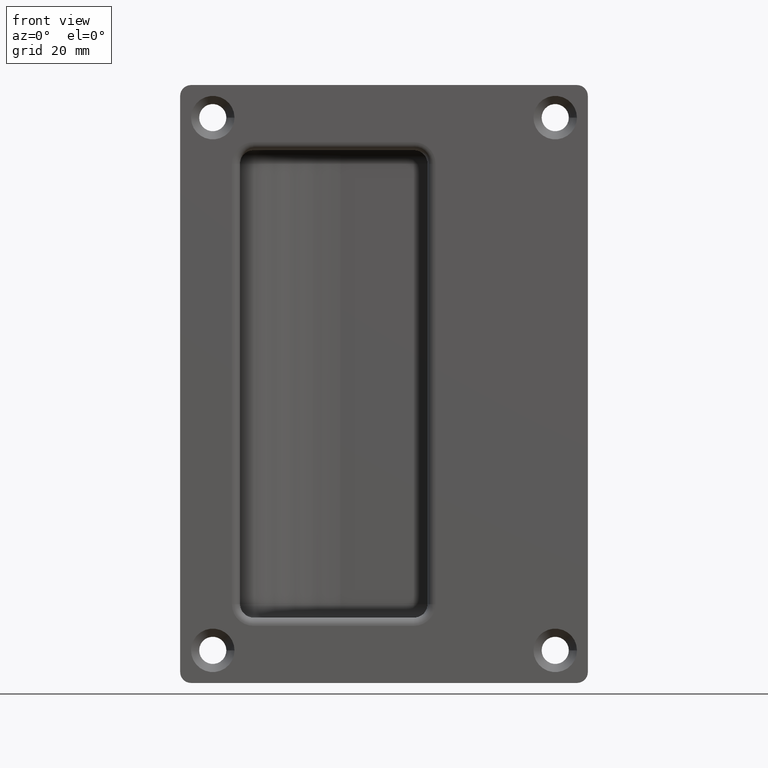
[diagram: clean part render]
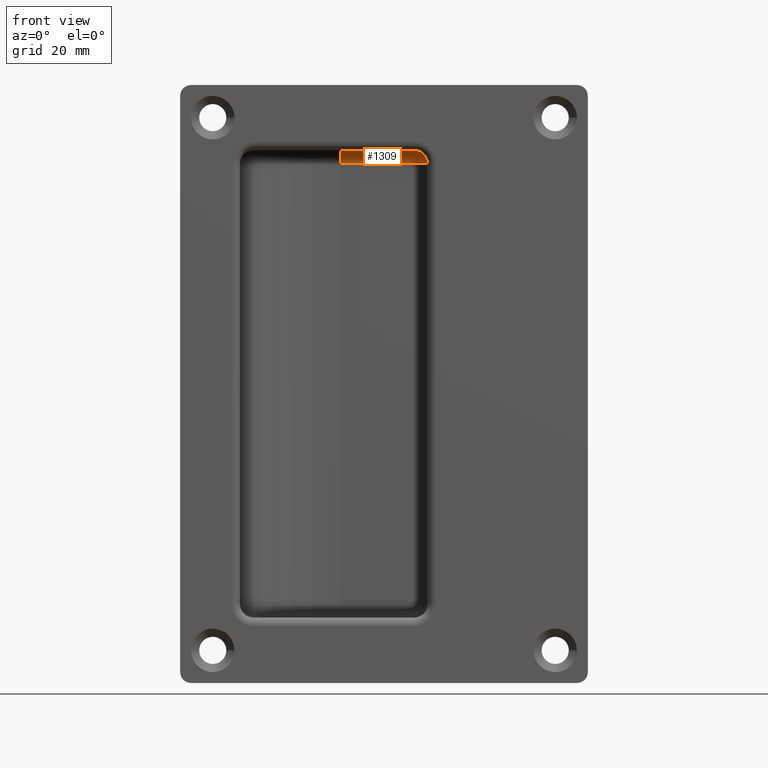
[diagram: same view with one face highlighted and labeled with its STEP entity id]
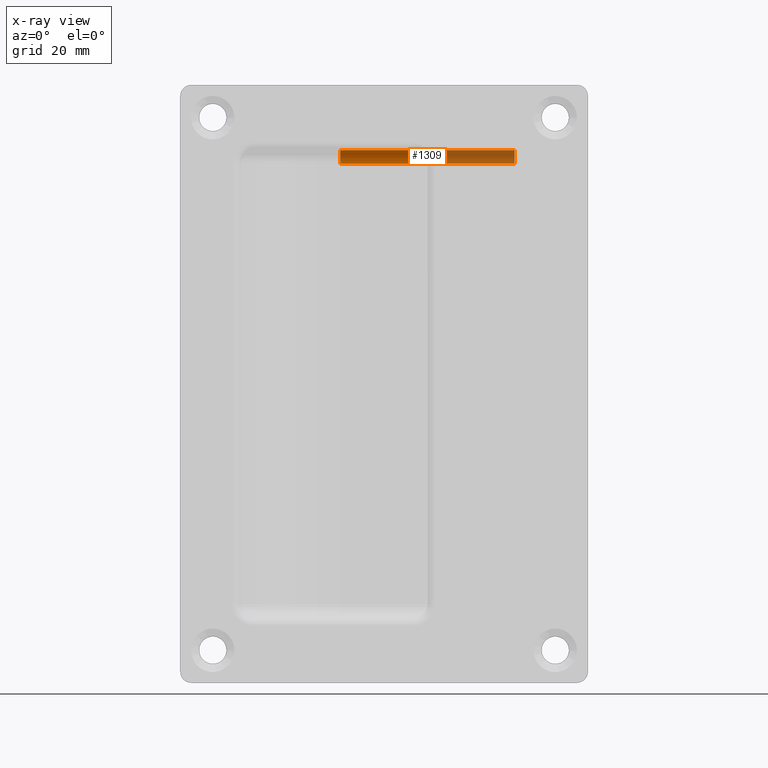
[diagram: x-ray of the same camera — body ghosted, the highlighted face saturated]
A machine part, front view. The second image highlights one B-rep face of the part: STEP entity #1309.
The next image is the same camera in x-ray: the body ghosted, the highlighted face saturated — about 52% of this face is hidden behind the body in this view.
In plain terms, the highlighted cylindrical surface (edge-blend (fillet) strip) has radius 2.5 mm, axis along (-1, -0, 0).
Its self-contained STEP definition (entity closure, byte-faithful):
#92=LINE('',#2117,#188);
#95=LINE('',#2134,#191);
#188=VECTOR('',#1659,32.);
#191=VECTOR('',#1680,32.);
#270=CYLINDRICAL_SURFACE('',#1424,2.5);
#313=FACE_OUTER_BOUND('',#398,.T.);
#398=EDGE_LOOP('',(#970,#971,#972,#973));
#507=CIRCLE('',#1422,2.5);
#509=CIRCLE('',#1425,2.5);
#611=VERTEX_POINT('',#2114);
#612=VERTEX_POINT('',#2116);
#616=VERTEX_POINT('',#2128);
#617=VERTEX_POINT('',#2132);
#743=EDGE_CURVE('',#611,#612,#92,.T.);
#749=EDGE_CURVE('',#612,#616,#507,.T.);
#751=EDGE_CURVE('',#617,#611,#509,.T.);
#752=EDGE_CURVE('',#616,#617,#95,.T.);
#970=ORIENTED_EDGE('',*,*,#751,.F.);
#971=ORIENTED_EDGE('',*,*,#752,.F.);
#972=ORIENTED_EDGE('',*,*,#749,.F.);
#973=ORIENTED_EDGE('',*,*,#743,.F.);
#1309=ADVANCED_FACE('',(#313),#270,.F.);
#1422=AXIS2_PLACEMENT_3D('',#2129,#1672,#1673);
#1424=AXIS2_PLACEMENT_3D('',#2131,#1676,#1677);
#1425=AXIS2_PLACEMENT_3D('',#2133,#1678,#1679);
#1659=DIRECTION('',(-1.,-2.77555756156289E-16,0.));
#1672=DIRECTION('center_axis',(1.,0.,0.));
#1673=DIRECTION('ref_axis',(0.,1.,0.));
#1676=DIRECTION('center_axis',(-1.,-2.77555756156289E-16,0.));
#1677=DIRECTION('ref_axis',(0.,0.707106781186546,0.707106781186549));
#1678=DIRECTION('center_axis',(-1.,0.,0.));
#1679=DIRECTION('ref_axis',(0.,0.,1.));
#1680=DIRECTION('',(1.,2.77555756156289E-16,0.));
#2114=CARTESIAN_POINT('',(51.,17.,40.5));
#2116=CARTESIAN_POINT('',(19.,17.,40.5));
#2117=CARTESIAN_POINT('',(39.9852925297952,17.,40.5));
#2128=CARTESIAN_POINT('',(19.,14.5,43.));
#2129=CARTESIAN_POINT('Origin',(19.,14.5,40.5));
#2131=CARTESIAN_POINT('Origin',(39.9852925297952,14.5,40.5));
#2132=CARTESIAN_POINT('',(51.,14.5,43.));
#2133=CARTESIAN_POINT('Origin',(51.,14.5,40.5));
#2134=CARTESIAN_POINT('',(39.9852925297952,14.5,43.));